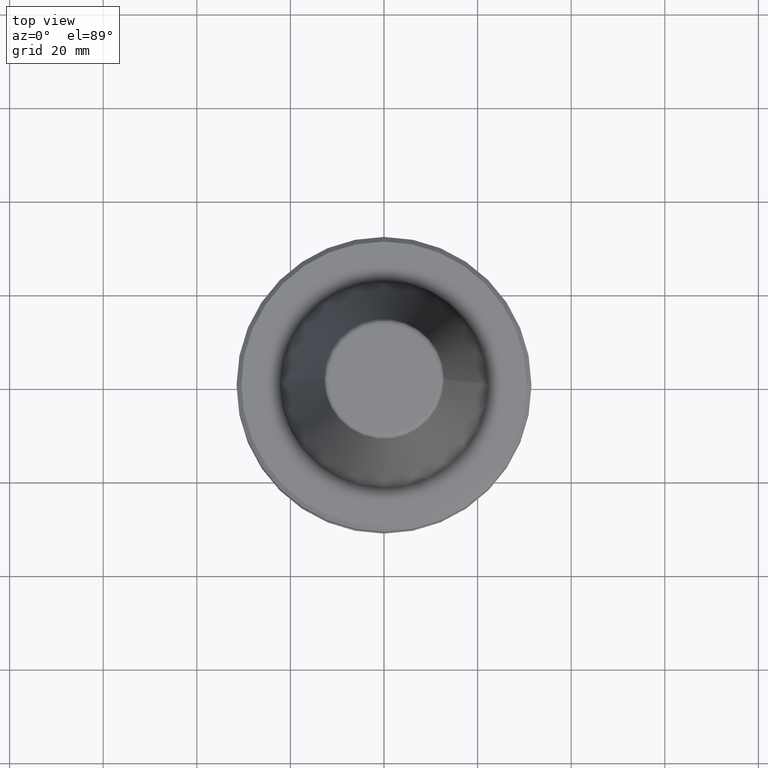
[diagram: clean part render]
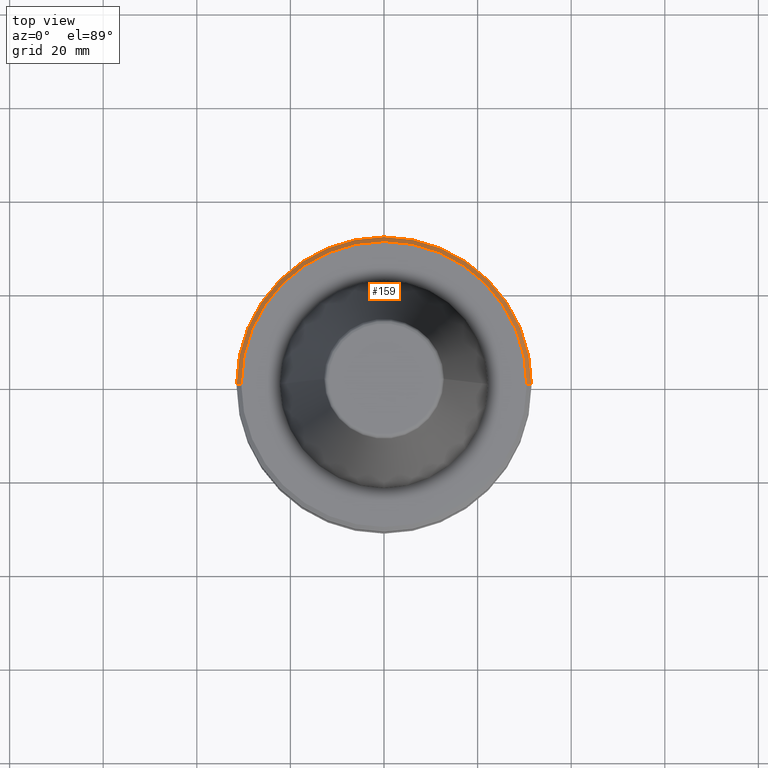
[diagram: same view with one face highlighted and labeled with its STEP entity id]
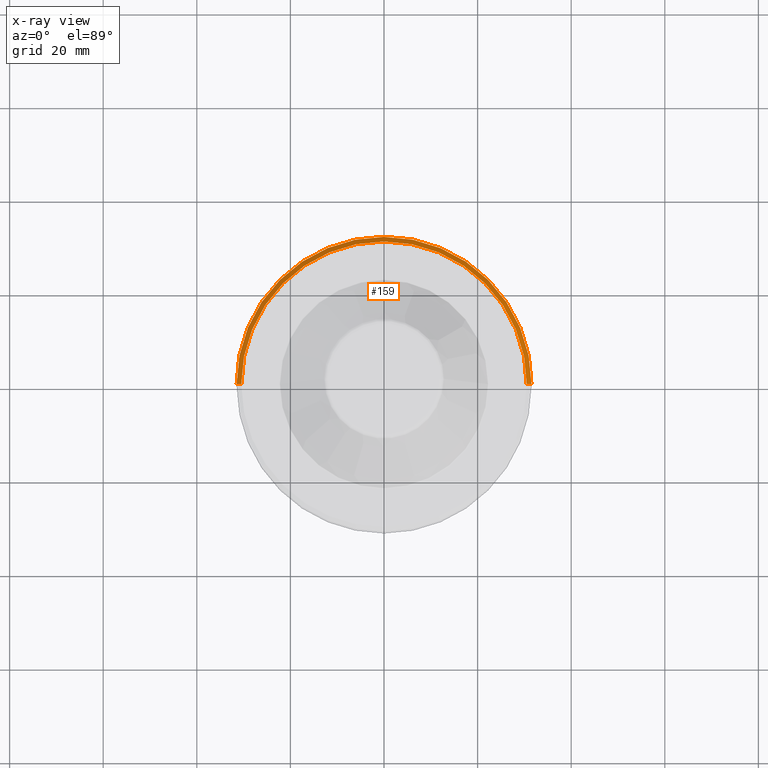
[diagram: x-ray of the same camera — body ghosted, the highlighted face saturated]
A machine part, top view. The second image highlights one B-rep face of the part: STEP entity #159.
The next image is the same camera in x-ray: the body ghosted, the highlighted face saturated — about 0% of this face is hidden behind the body in this view.
In plain terms, the highlighted conical surface has half-angle 45 deg.
Its self-contained STEP definition (entity closure, byte-faithful):
#81 = DIRECTION ( 'NONE',  ( 1.000000000000000000, 0.0000000000000000000, 0.0000000000000000000 ) ) ;
#102 = ORIENTED_EDGE ( 'NONE', *, *, #807, .T. ) ;
#108 = CARTESIAN_POINT ( 'NONE',  ( 0.0000000000000000000, 0.0000000000000000000, -2.311286788340083400 ) ) ;
#113 = AXIS2_PLACEMENT_3D ( 'NONE', #1034, #599, #81 ) ;
#148 = AXIS2_PLACEMENT_3D ( 'NONE', #157, #246, #950 ) ;
#157 = CARTESIAN_POINT ( 'NONE',  ( 0.0000000000000000000, 0.0000000000000000000, -2.311286788340083400 ) ) ;
#159 = ADVANCED_FACE ( 'NONE', ( #806 ), #594, .T. ) ;
#246 = DIRECTION ( 'NONE',  ( -0.0000000000000000000, -0.0000000000000000000, 1.000000000000000000 ) ) ;
#259 = VERTEX_POINT ( 'NONE', #738 ) ;
#264 = EDGE_LOOP ( 'NONE', ( #465, #102, #570, #381 ) ) ;
#314 = CARTESIAN_POINT ( 'NONE',  ( 31.49999999999986100, 0.0000000000000000000, -2.311286788340083400 ) ) ;
#371 = DIRECTION ( 'NONE',  ( -0.7071067811865474600, 0.0000000000000000000, -0.7071067811865475700 ) ) ;
#381 = ORIENTED_EDGE ( 'NONE', *, *, #814, .F. ) ;
#405 = CARTESIAN_POINT ( 'NONE',  ( -31.49999999999986100, 3.857637417314145300E-015, -2.311286788340083400 ) ) ;
#465 = ORIENTED_EDGE ( 'NONE', *, *, #784, .F. ) ;
#539 = LINE ( 'NONE', #821, #945 ) ;
#566 = AXIS2_PLACEMENT_3D ( 'NONE', #108, #813, #708 ) ;
#570 = ORIENTED_EDGE ( 'NONE', *, *, #665, .T. ) ;
#594 = CONICAL_SURFACE ( 'NONE', #566, 31.49999999999986100, 0.7853981633974482800 ) ;
#599 = DIRECTION ( 'NONE',  ( -0.0000000000000000000, -0.0000000000000000000, 1.000000000000000000 ) ) ;
#665 = EDGE_CURVE ( 'NONE', #1017, #1049, #935, .T. ) ;
#671 = DIRECTION ( 'NONE',  ( 0.7071067811865474600, 8.659560562354931600E-017, -0.7071067811865475700 ) ) ;
#673 = CARTESIAN_POINT ( 'NONE',  ( -31.49999999999986100, 0.0000000000000000000, -2.311286788340083400 ) ) ;
#708 = DIRECTION ( 'NONE',  ( -1.000000000000000000, 0.0000000000000000000, 0.0000000000000000000 ) ) ;
#738 = CARTESIAN_POINT ( 'NONE',  ( 30.49999999999986100, 3.796405077356777800E-015, -1.311286788340082500 ) ) ;
#784 = EDGE_CURVE ( 'NONE', #259, #948, #984, .T. ) ;
#806 = FACE_OUTER_BOUND ( 'NONE', #264, .T. ) ;
#807 = EDGE_CURVE ( 'NONE', #259, #1017, #539, .T. ) ;
#813 = DIRECTION ( 'NONE',  ( 0.0000000000000000000, 0.0000000000000000000, -1.000000000000000000 ) ) ;
#814 = EDGE_CURVE ( 'NONE', #948, #1049, #963, .T. ) ;
#821 = CARTESIAN_POINT ( 'NONE',  ( 31.49999999999986100, 3.857637417314145300E-015, -2.311286788340083400 ) ) ;
#847 = CARTESIAN_POINT ( 'NONE',  ( -30.49999999999986100, 0.0000000000000000000, -1.311286788340082500 ) ) ;
#922 = VECTOR ( 'NONE', #371, 1000.000000000000000 ) ;
#935 = CIRCLE ( 'NONE', #148, 31.49999999999986100 ) ;
#945 = VECTOR ( 'NONE', #671, 1000.000000000000000 ) ;
#948 = VERTEX_POINT ( 'NONE', #847 ) ;
#950 = DIRECTION ( 'NONE',  ( 1.000000000000000000, 0.0000000000000000000, 0.0000000000000000000 ) ) ;
#963 = LINE ( 'NONE', #673, #922 ) ;
#984 = CIRCLE ( 'NONE', #113, 30.49999999999986100 ) ;
#1017 = VERTEX_POINT ( 'NONE', #314 ) ;
#1034 = CARTESIAN_POINT ( 'NONE',  ( 0.0000000000000000000, 0.0000000000000000000, -1.311286788340082500 ) ) ;
#1049 = VERTEX_POINT ( 'NONE', #405 ) ;